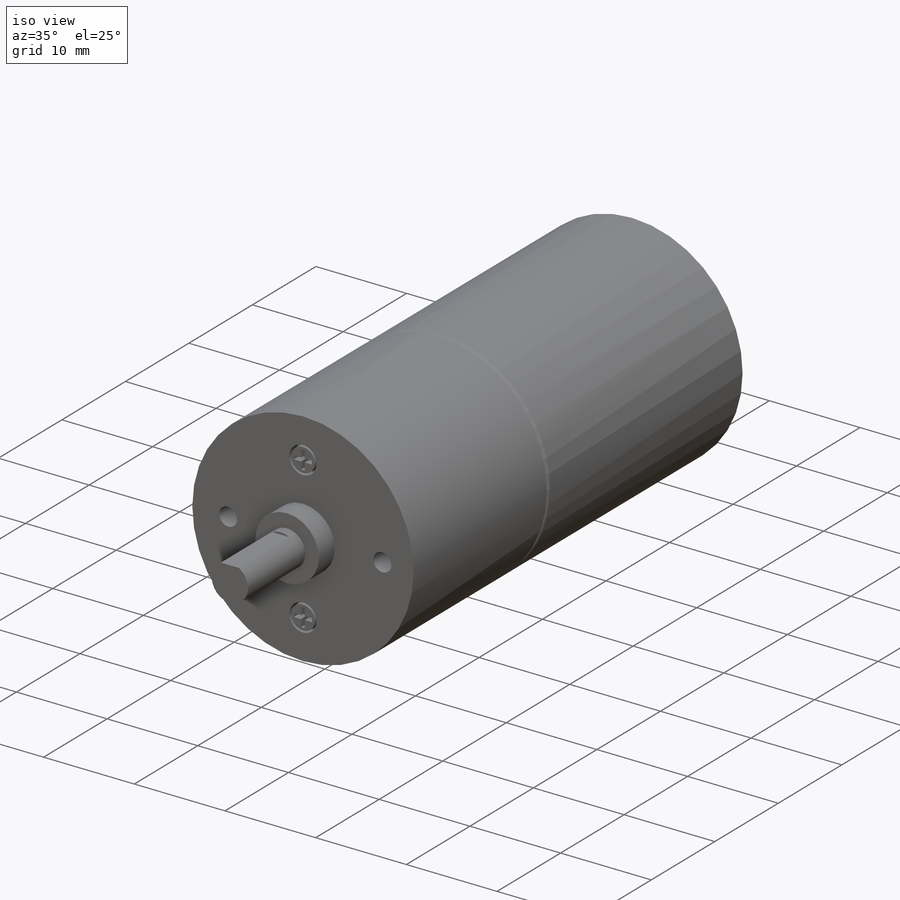
[diagram: iso view]
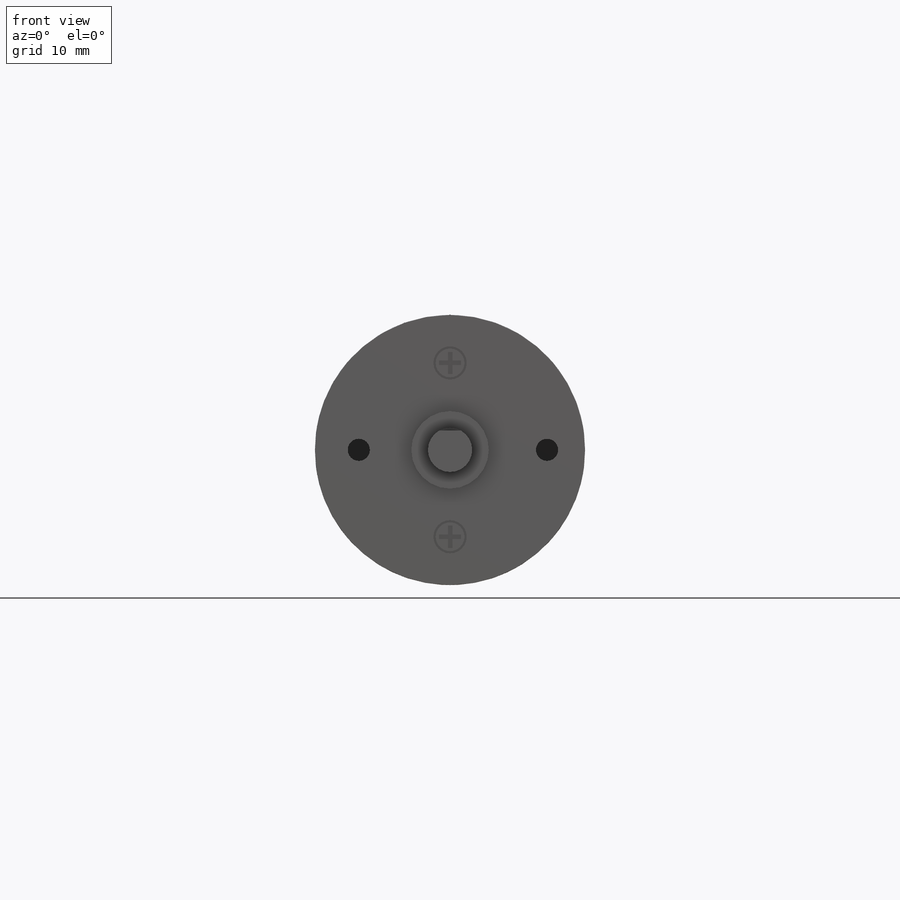
[diagram: front view]
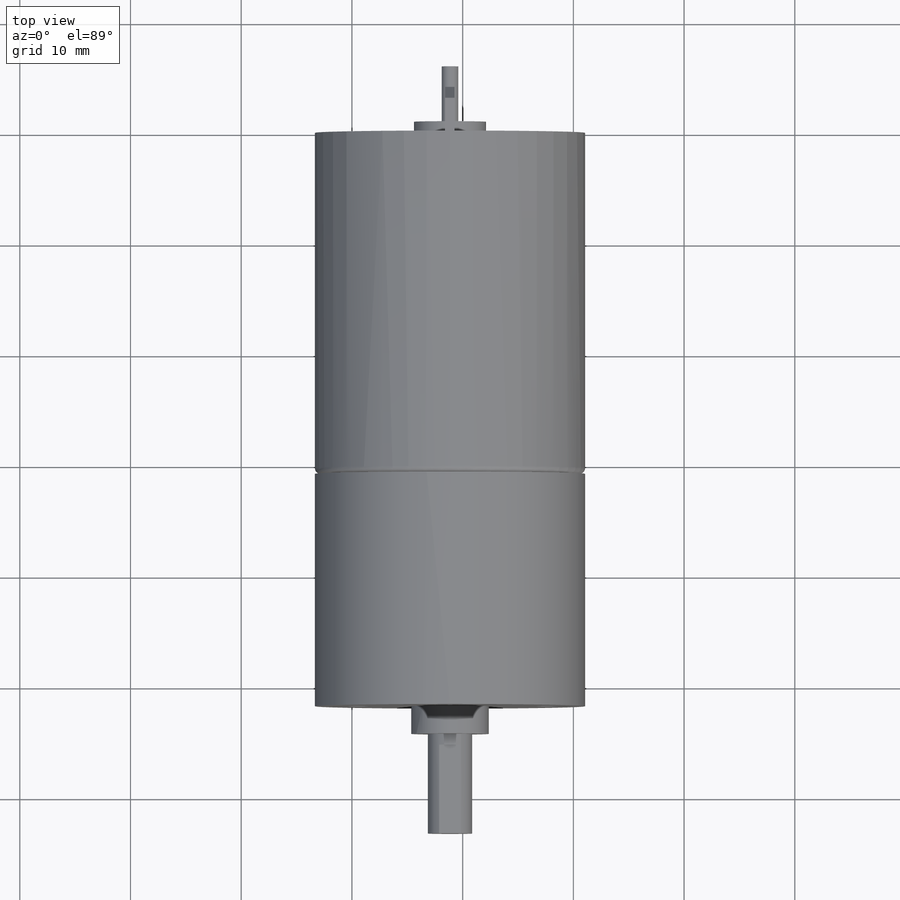
[diagram: top view]
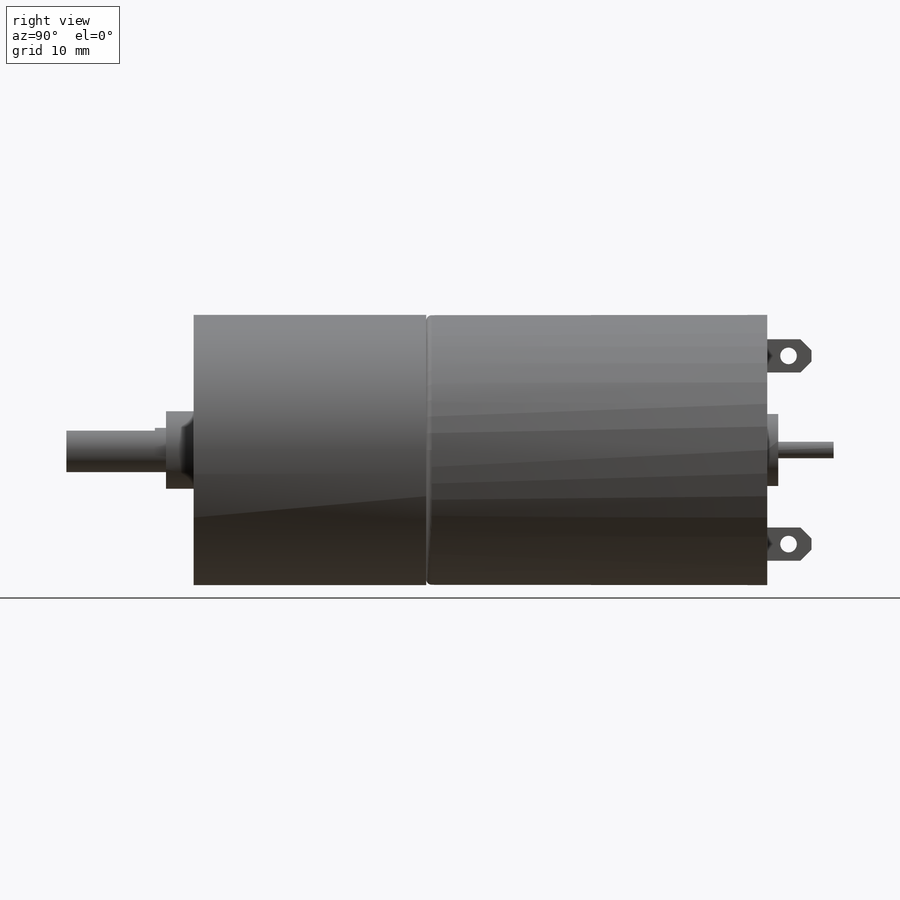
[diagram: right view]
SOLIDWORKS PART (.sldprt)
format: sldprt  version: not decoded by parser v0  size: 352,256 bytes
history: native  units: mm
features: sketch x11, extrude x7, cut_extrude x4, plane x3, material x1, fillet x1, chamfer x1 (+10 scaffold rows collapsed)
feature tree (38):
  scaffold x10  (default folders/planes/origin — collapsed)
  material  "Material <not specified>"
  plane  "Ön Düzlem"
  plane  "Üst Düzlem"
  plane  "Sağ Düzlem"
  sketch  "Çizim1"  dims[D1=24.4mm]
  extrude  "Yükseklik-Ekstrüzyon1"  Depth=30.8mm
  fillet  "Radyus1"  Radius=0.5mm
  sketch  "Çizim2"
  extrude  "Yükseklik-Ekstrüzyon2"  Depth=21mm
  sketch  "Çizim3"  dims[D1=7.0mm]
  extrude  "Yükseklik-Ekstrüzyon3"  Depth=2.5mm
  sketch  "Çizim4"  dims[D1=4.0mm]
  extrude  "Yükseklik-Ekstrüzyon4"  Depth=9mm
  sketch  "Çizim5"  dims[D2=2.0mm D3=2.0mm D1=17.0mm]
  cut_extrude  "Kes-Ekstrüzyon1"  Depth=10mm
  sketch  "Çizim6"  dims[c1.D1=3.0mm c1.D2=3.0mm c1.D3=~2.241957mm c1.D4=~2.463329mm c2.D3=0.2mm c2.D4=0.2mm c2.D5=0.8mm c2.D6=~2.067817mm c3.D6=90.0deg c4.D6=0.8mm c4.D7=0.8mm c4.D8=0.8mm c4.D9=0.4mm c4.D10=0.4mm c4.D11=0.2mm c4.D12=0.2mm c4.D4=2.0]
  cut_extrude  "Kes-Ekstrüzyon2"  Depth=1mm
  sketch  "Çizim8"  dims[D2=4.0mm D1=1.75mm]
  cut_extrude  "Kes-Ekstrüzyon3"  Depth=8mm
  sketch  "Çizim9"  dims[D1=6.5mm]
  extrude  "Yükseklik-Ekstrüzyon5"  Depth=1mm
  sketch  "Çizim10"  dims[D1=1.5mm]
  extrude  "Yükseklik-Ekstrüzyon6"  Depth=5mm
  sketch  "Çizim11"  dims[D1=7.0mm D2=7.0mm D3=3.0mm D4=3.0mm]
  extrude  "Yükseklik-Ekstrüzyon7"  Depth=4mm
  sketch  "Çizim12"  dims[D1=1.5mm D2=1.5mm D3=1.5mm D4=1.5mm]
  cut_extrude  "Kes-Ekstrüzyon4"  Depth=4mm
  chamfer  "Pah1"  Distance=1mm
decode coverage: 23 of 24 modeling features carry decoded parameters
note: ~ marks probable driven/reference dimensions
note: suppression state not decoded; provenance and decode notes live in map.json
